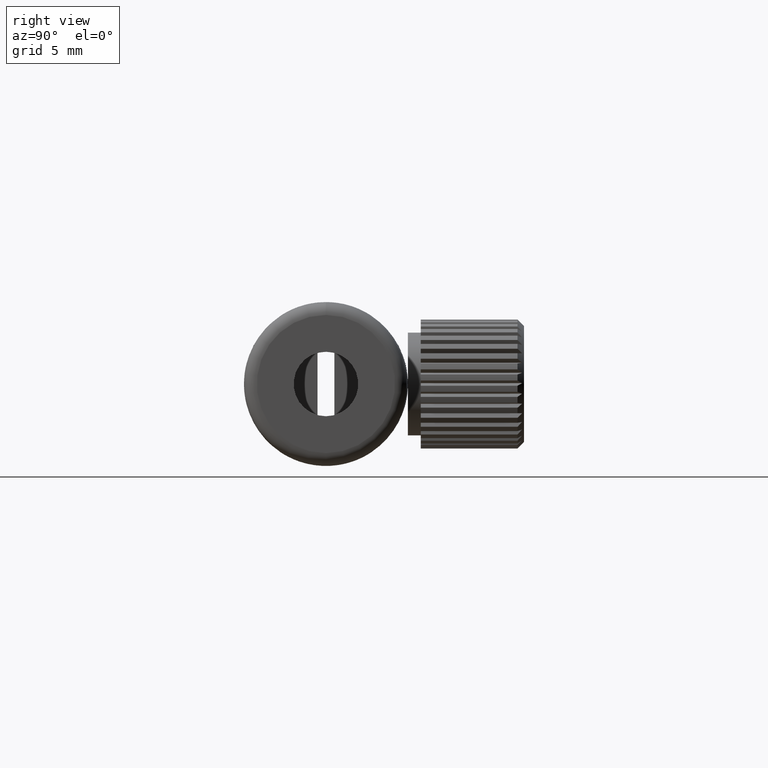
[diagram: clean part render]
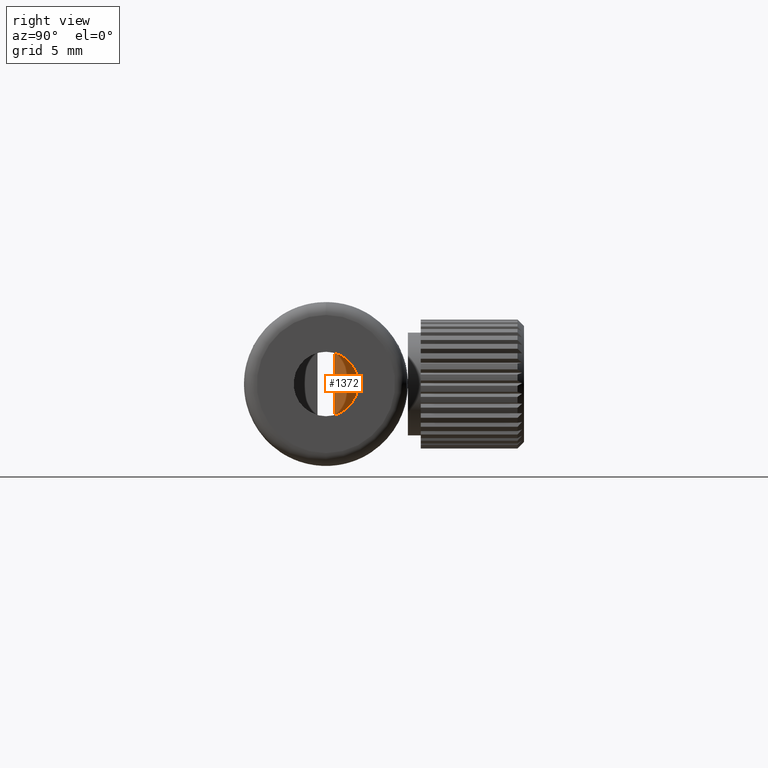
[diagram: same view with one face highlighted and labeled with its STEP entity id]
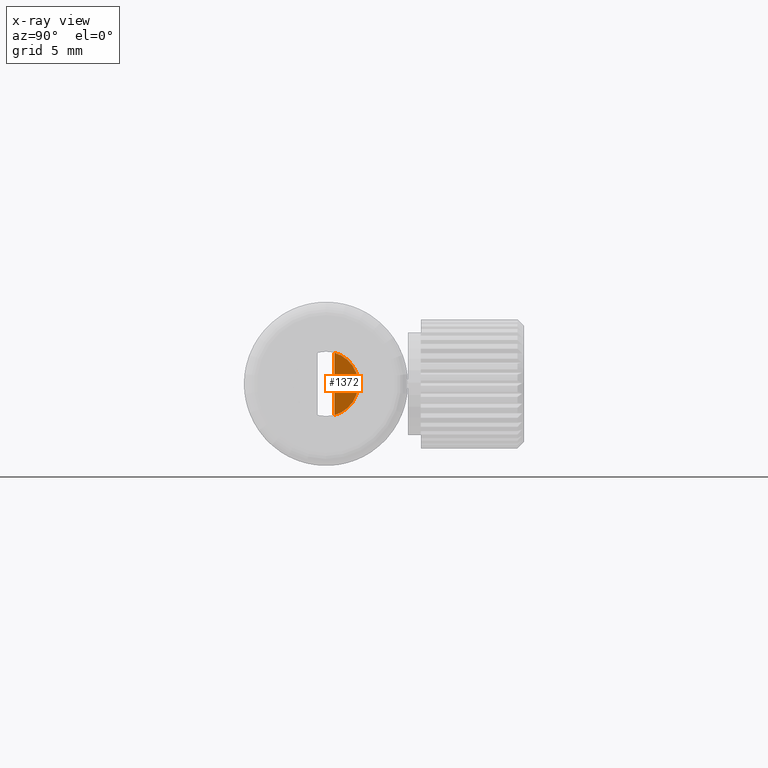
[diagram: x-ray of the same camera — body ghosted, the highlighted face saturated]
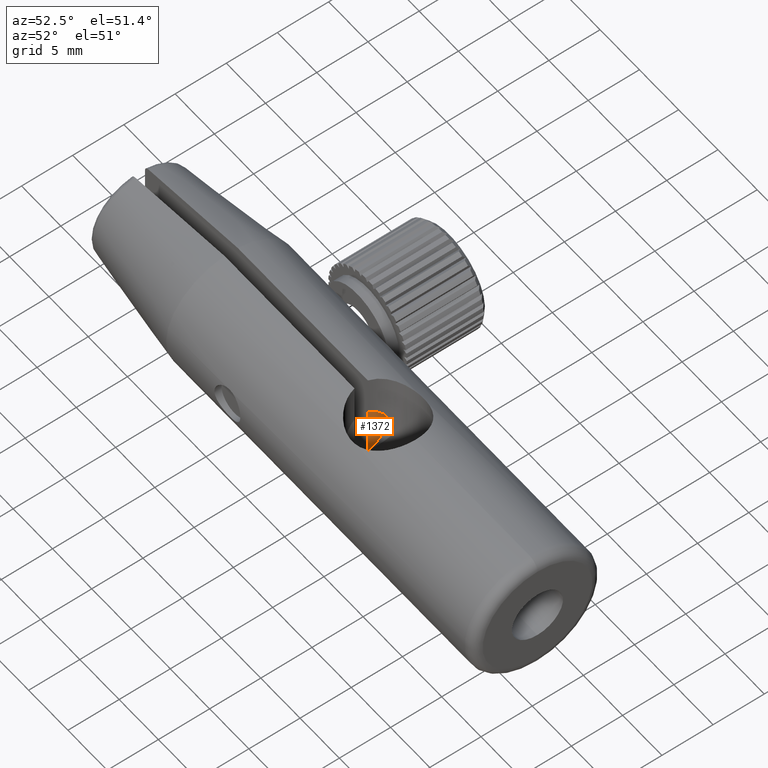
[diagram: same view with one face highlighted and labeled with its STEP entity id]
A machine part, right view. The second image highlights one B-rep face of the part: STEP entity #1372.
The next image is the same camera in x-ray: the body ghosted, the highlighted face saturated — about 0% of this face is hidden behind the body in this view.
A second angle (auxiliary view) of the same face is appended — the face is thin or edge-on in the first view.
In plain terms, the highlighted planar face has unit normal (-1, 0, 0).
Its self-contained STEP definition (entity closure, byte-faithful):
#178 = EDGE_CURVE ( 'NONE', #3096, #3129, #1316, .T. ) ;
#181 = EDGE_CURVE ( 'NONE', #3096, #3129, #1321, .T. ) ;
#475 = CARTESIAN_POINT ( 'NONE',  ( -4.802174568884126400, -2.018439813343262400, -2.414021540914657900 ) ) ;
#508 = CARTESIAN_POINT ( 'NONE',  ( -4.802174568884126400, -2.018439813343262400, 2.414021540914657900 ) ) ;
#1241 = ORIENTED_EDGE ( 'NONE', *, *, #181, .T. ) ;
#1242 = ORIENTED_EDGE ( 'NONE', *, *, #178, .F. ) ;
#1316 = LINE ( 'NONE', #3868, #1318 ) ;
#1318 = VECTOR ( 'NONE', #3870, 1000.000000000000000 ) ;
#1321 = CIRCLE ( 'NONE', #3824, 2.499999999999995600 ) ;
#1372 = ADVANCED_FACE ( 'NONE', ( #2946 ), #2826, .F. ) ;
#2515 = EDGE_LOOP ( 'NONE', ( #1241, #1242 ) ) ;
#2823 = CARTESIAN_POINT ( 'NONE',  ( -4.802174568884126400, -2.668439813343268100, 0.0000000000000000000 ) ) ;
#2826 = PLANE ( 'NONE',  #3848 ) ;
#2828 = DIRECTION ( 'NONE',  ( -1.000000000000000000, 0.0000000000000000000, 0.0000000000000000000 ) ) ;
#2829 = DIRECTION ( 'NONE',  ( 0.0000000000000000000, 0.0000000000000000000, 1.000000000000000000 ) ) ;
#2946 = FACE_OUTER_BOUND ( 'NONE', #2515, .T. ) ;
#3096 = VERTEX_POINT ( 'NONE', #475 ) ;
#3129 = VERTEX_POINT ( 'NONE', #508 ) ;
#3824 = AXIS2_PLACEMENT_3D ( 'NONE', #3877, #3878, #3879 ) ;
#3848 = AXIS2_PLACEMENT_3D ( 'NONE', #2823, #2828, #2829 ) ;
#3868 = CARTESIAN_POINT ( 'NONE',  ( -4.802174568884126400, -2.018439813343262400, -30.00000000000000000 ) ) ;
#3870 = DIRECTION ( 'NONE',  ( 0.0000000000000000000, 0.0000000000000000000, 1.000000000000000000 ) ) ;
#3877 = CARTESIAN_POINT ( 'NONE',  ( -4.802174568884126400, -2.668439813343262300, 0.0000000000000000000 ) ) ;
#3878 = DIRECTION ( 'NONE',  ( 1.000000000000000000, -0.0000000000000000000, -0.0000000000000000000 ) ) ;
#3879 = DIRECTION ( 'NONE',  ( 0.0000000000000000000, 0.0000000000000000000, -1.000000000000000000 ) ) ;